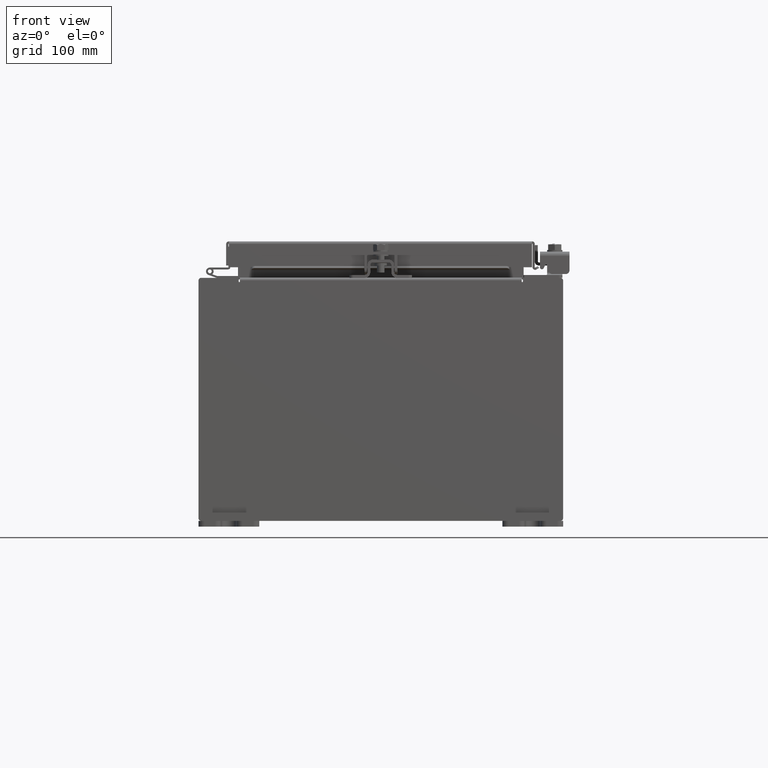
[diagram: clean part render]
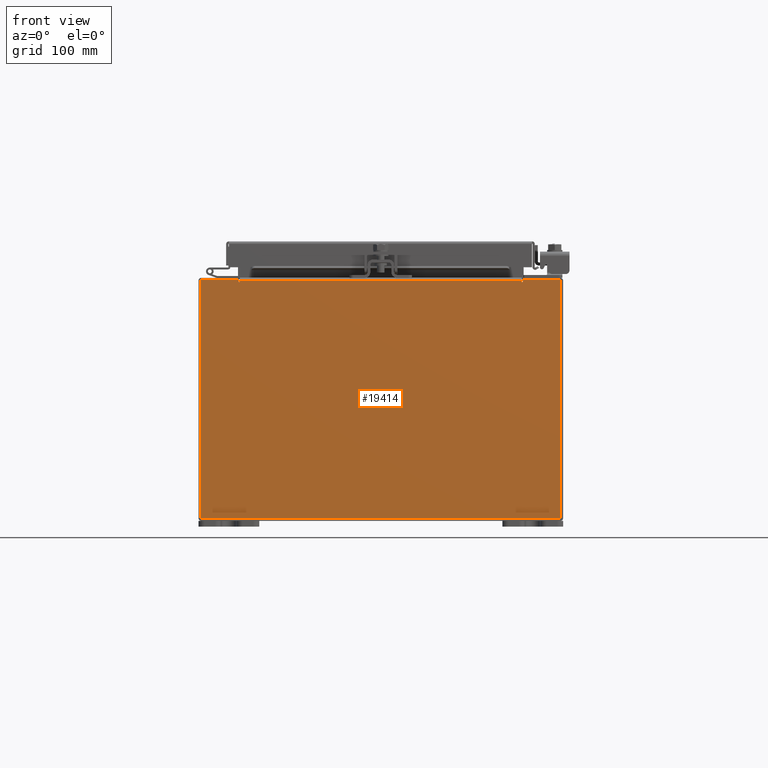
[diagram: same view with one face highlighted and labeled with its STEP entity id]
A machine part, front view. The second image highlights one B-rep face of the part: STEP entity #19414.
In plain terms, the highlighted planar face has unit normal (-0, 1, -0).
Its self-contained STEP definition (entity closure, byte-faithful):
#67 = DIRECTION ( 'NONE',  ( 0.0000000000000000000, -0.0000000000000000000, -1.000000000000000000 ) ) ;
#227 = VECTOR ( 'NONE', #1547, 39.37007874015748100 ) ;
#273 = EDGE_CURVE ( 'NONE', #10339, #13728, #2026, .T. ) ;
#433 = VECTOR ( 'NONE', #25930, 39.37007874015748100 ) ;
#573 = DIRECTION ( 'NONE',  ( 0.0000000000000000000, 0.0000000000000000000, -1.000000000000000000 ) ) ;
#597 = ORIENTED_EDGE ( 'NONE', *, *, #11706, .T. ) ;
#615 = CARTESIAN_POINT ( 'NONE',  ( -4.674549999999998200, -0.0000000000000000000, 0.0000000000000000000 ) ) ;
#619 = CARTESIAN_POINT ( 'NONE',  ( -5.925299999999998200, 0.0000000000000000000, 3.925299999999999100 ) ) ;
#1189 = CARTESIAN_POINT ( 'NONE',  ( 4.674550000000001800, 0.0000000000000000000, 3.925299999999999100 ) ) ;
#1547 = DIRECTION ( 'NONE',  ( 0.0000000000000000000, 0.0000000000000000000, 1.000000000000000000 ) ) ;
#1703 = LINE ( 'NONE', #12720, #22485 ) ;
#1906 = EDGE_CURVE ( 'NONE', #13728, #22856, #21307, .T. ) ;
#2026 = CIRCLE ( 'NONE', #20658, 0.01867500000000003900 ) ;
#2060 = ORIENTED_EDGE ( 'NONE', *, *, #273, .F. ) ;
#2066 = PLANE ( 'NONE',  #25184 ) ;
#2653 = ORIENTED_EDGE ( 'NONE', *, *, #1906, .F. ) ;
#2996 = CARTESIAN_POINT ( 'NONE',  ( 4.655875000000002700, 0.0000000000000000000, 3.874949999999999200 ) ) ;
#3020 = LINE ( 'NONE', #4381, #17931 ) ;
#3055 = ORIENTED_EDGE ( 'NONE', *, *, #17354, .T. ) ;
#3398 = VERTEX_POINT ( 'NONE', #7671 ) ;
#3462 = EDGE_CURVE ( 'NONE', #15731, #3398, #20963, .T. ) ;
#3638 = DIRECTION ( 'NONE',  ( -0.0000000000000000000, -0.0000000000000000000, 1.000000000000000000 ) ) ;
#4103 = CARTESIAN_POINT ( 'NONE',  ( 4.674549999999960900, -0.0000000000000000000, -5.072556122654668400E-014 ) ) ;
#4204 = DIRECTION ( 'NONE',  ( -0.0000000000000000000, 1.000000000000000000, -0.0000000000000000000 ) ) ;
#4381 = CARTESIAN_POINT ( 'NONE',  ( -5.925299999999998200, 0.0000000000000000000, 3.925299999999999100 ) ) ;
#4800 = DIRECTION ( 'NONE',  ( 1.000000000000000000, 0.0000000000000000000, 0.0000000000000000000 ) ) ;
#4968 = LINE ( 'NONE', #23546, #20451 ) ;
#4975 = DIRECTION ( 'NONE',  ( 0.0000000000000000000, 0.0000000000000000000, -1.000000000000000000 ) ) ;
#5000 = DIRECTION ( 'NONE',  ( 1.000000000000000000, 0.0000000000000000000, 0.0000000000000000000 ) ) ;
#5151 = FACE_OUTER_BOUND ( 'NONE', #6045, .T. ) ;
#5453 = DIRECTION ( 'NONE',  ( -1.085143195100001200E-014, 0.0000000000000000000, -1.000000000000000000 ) ) ;
#5700 = LINE ( 'NONE', #615, #227 ) ;
#5773 = CARTESIAN_POINT ( 'NONE',  ( -4.637199999999998200, -0.0000000000000000000, 3.874949999999999200 ) ) ;
#6034 = LINE ( 'NONE', #9612, #11465 ) ;
#6045 = EDGE_LOOP ( 'NONE', ( #17901, #11640, #9844, #597, #2653, #2060, #13199, #21532, #17121, #7702, #16141, #3055 ) ) ;
#6329 = CARTESIAN_POINT ( 'NONE',  ( 4.674550000000002600, 0.0000000000000000000, 3.874949999999999200 ) ) ;
#6967 = DIRECTION ( 'NONE',  ( -0.0000000000000000000, 1.000000000000000000, -0.0000000000000000000 ) ) ;
#7671 = CARTESIAN_POINT ( 'NONE',  ( -5.925299999999998200, 0.0000000000000000000, -3.925300000000000500 ) ) ;
#7702 = ORIENTED_EDGE ( 'NONE', *, *, #3462, .T. ) ;
#7984 = VECTOR ( 'NONE', #5453, 39.37007874015748100 ) ;
#8443 = CARTESIAN_POINT ( 'NONE',  ( 4.637200000000002700, 0.0000000000000000000, 0.0000000000000000000 ) ) ;
#8550 = AXIS2_PLACEMENT_3D ( 'NONE', #21040, #6967, #11557 ) ;
#8786 = EDGE_CURVE ( 'NONE', #18717, #19868, #14439, .T. ) ;
#9164 = VERTEX_POINT ( 'NONE', #23560 ) ;
#9612 = CARTESIAN_POINT ( 'NONE',  ( -4.637199999999998200, -1.707404996040164500E-016, 3.912299999999999200 ) ) ;
#9700 = VECTOR ( 'NONE', #21998, 39.37007874015748100 ) ;
#9741 = VECTOR ( 'NONE', #4800, 39.37007874015748100 ) ;
#9844 = ORIENTED_EDGE ( 'NONE', *, *, #25047, .F. ) ;
#10339 = VERTEX_POINT ( 'NONE', #6329 ) ;
#10632 = LINE ( 'NONE', #22972, #20647 ) ;
#11097 = EDGE_CURVE ( 'NONE', #26087, #10339, #23938, .T. ) ;
#11465 = VECTOR ( 'NONE', #5000, 39.37007874015748100 ) ;
#11557 = DIRECTION ( 'NONE',  ( 0.0000000000000000000, 0.0000000000000000000, -1.000000000000000000 ) ) ;
#11640 = ORIENTED_EDGE ( 'NONE', *, *, #8786, .F. ) ;
#11706 = EDGE_CURVE ( 'NONE', #13521, #22856, #6034, .T. ) ;
#12191 = CARTESIAN_POINT ( 'NONE',  ( -4.674549999999998200, 0.0000000000000000000, 3.925299999999999100 ) ) ;
#12307 = DIRECTION ( 'NONE',  ( 0.0000000000000000000, -1.000000000000000000, 0.0000000000000000000 ) ) ;
#12720 = CARTESIAN_POINT ( 'NONE',  ( 5.925300000000002700, 0.0000000000000000000, 3.925299999999999100 ) ) ;
#13199 = ORIENTED_EDGE ( 'NONE', *, *, #11097, .F. ) ;
#13521 = VERTEX_POINT ( 'NONE', #20585 ) ;
#13537 = EDGE_CURVE ( 'NONE', #3398, #23294, #4968, .T. ) ;
#13728 = VERTEX_POINT ( 'NONE', #22532 ) ;
#14439 = CIRCLE ( 'NONE', #8550, 0.01867500000000003900 ) ;
#14640 = EDGE_CURVE ( 'NONE', #19868, #22192, #5700, .T. ) ;
#15731 = VERTEX_POINT ( 'NONE', #23710 ) ;
#16141 = ORIENTED_EDGE ( 'NONE', *, *, #13537, .T. ) ;
#16892 = EDGE_CURVE ( 'NONE', #26087, #9164, #3020, .T. ) ;
#17121 = ORIENTED_EDGE ( 'NONE', *, *, #18154, .T. ) ;
#17354 = EDGE_CURVE ( 'NONE', #23294, #22192, #20397, .T. ) ;
#17901 = ORIENTED_EDGE ( 'NONE', *, *, #14640, .F. ) ;
#17931 = VECTOR ( 'NONE', #22136, 39.37007874015748100 ) ;
#18154 = EDGE_CURVE ( 'NONE', #9164, #15731, #1703, .T. ) ;
#18250 = CARTESIAN_POINT ( 'NONE',  ( 0.0000000000000000000, 0.0000000000000000000, 0.0000000000000000000 ) ) ;
#18717 = VERTEX_POINT ( 'NONE', #5773 ) ;
#19414 = ADVANCED_FACE ( 'NONE', ( #5151 ), #2066, .F. ) ;
#19868 = VERTEX_POINT ( 'NONE', #19894 ) ;
#19894 = CARTESIAN_POINT ( 'NONE',  ( -4.674549999999998200, 0.0000000000000000000, 3.874949999999999200 ) ) ;
#19944 = CARTESIAN_POINT ( 'NONE',  ( 4.637200000000002700, 0.0000000000000000000, 3.912299999999999200 ) ) ;
#20230 = CARTESIAN_POINT ( 'NONE',  ( -5.925299999999998200, 0.0000000000000000000, -3.925300000000000500 ) ) ;
#20397 = LINE ( 'NONE', #22812, #9741 ) ;
#20451 = VECTOR ( 'NONE', #3638, 39.37007874015748100 ) ;
#20585 = CARTESIAN_POINT ( 'NONE',  ( -4.637199999999998200, -1.707404996040164500E-016, 3.912299999999999200 ) ) ;
#20647 = VECTOR ( 'NONE', #4975, 39.37007874015748100 ) ;
#20658 = AXIS2_PLACEMENT_3D ( 'NONE', #2996, #4204, #21595 ) ;
#20963 = LINE ( 'NONE', #20230, #9700 ) ;
#21040 = CARTESIAN_POINT ( 'NONE',  ( -4.655874999999998200, 0.0000000000000000000, 3.874949999999999200 ) ) ;
#21307 = LINE ( 'NONE', #8443, #433 ) ;
#21532 = ORIENTED_EDGE ( 'NONE', *, *, #16892, .T. ) ;
#21595 = DIRECTION ( 'NONE',  ( 0.0000000000000000000, 0.0000000000000000000, -1.000000000000000000 ) ) ;
#21998 = DIRECTION ( 'NONE',  ( -1.000000000000000000, -0.0000000000000000000, -0.0000000000000000000 ) ) ;
#22136 = DIRECTION ( 'NONE',  ( 1.000000000000000000, 0.0000000000000000000, 0.0000000000000000000 ) ) ;
#22192 = VERTEX_POINT ( 'NONE', #12191 ) ;
#22485 = VECTOR ( 'NONE', #573, 39.37007874015748100 ) ;
#22532 = CARTESIAN_POINT ( 'NONE',  ( 4.637200000000002700, 0.0000000000000000000, 3.874949999999999200 ) ) ;
#22812 = CARTESIAN_POINT ( 'NONE',  ( -5.925299999999998200, 0.0000000000000000000, 3.925299999999999100 ) ) ;
#22856 = VERTEX_POINT ( 'NONE', #19944 ) ;
#22972 = CARTESIAN_POINT ( 'NONE',  ( -4.637199999999998200, -0.0000000000000000000, 0.0000000000000000000 ) ) ;
#23294 = VERTEX_POINT ( 'NONE', #619 ) ;
#23546 = CARTESIAN_POINT ( 'NONE',  ( -5.925299999999998200, 0.0000000000000000000, 3.925299999999999100 ) ) ;
#23560 = CARTESIAN_POINT ( 'NONE',  ( 5.925300000000002700, 0.0000000000000000000, 3.925299999999999100 ) ) ;
#23710 = CARTESIAN_POINT ( 'NONE',  ( 5.925300000000002700, 0.0000000000000000000, -3.925300000000000500 ) ) ;
#23938 = LINE ( 'NONE', #4103, #7984 ) ;
#25047 = EDGE_CURVE ( 'NONE', #13521, #18717, #10632, .T. ) ;
#25184 = AXIS2_PLACEMENT_3D ( 'NONE', #18250, #12307, #67 ) ;
#25930 = DIRECTION ( 'NONE',  ( 0.0000000000000000000, 0.0000000000000000000, 1.000000000000000000 ) ) ;
#26087 = VERTEX_POINT ( 'NONE', #1189 ) ;